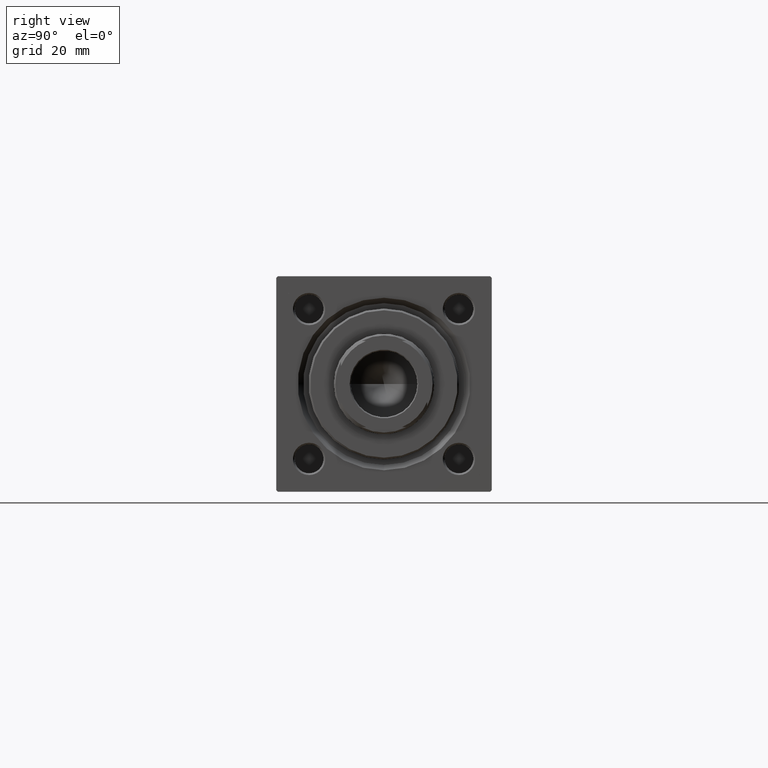
[diagram: clean part render]
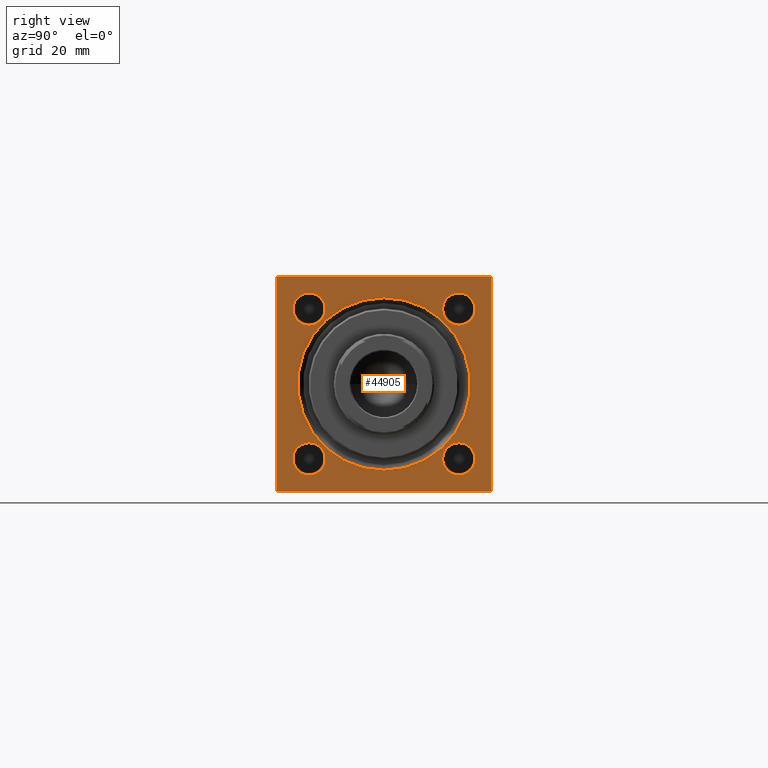
[diagram: same view with one face highlighted and labeled with its STEP entity id]
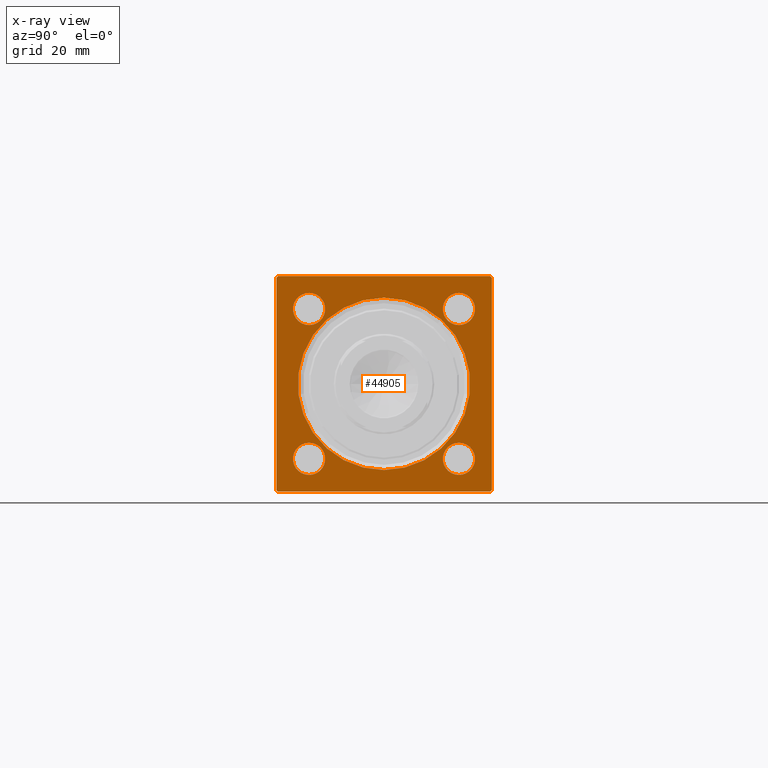
[diagram: x-ray of the same camera — body ghosted, the highlighted face saturated]
A machine part, right view. The second image highlights one B-rep face of the part: STEP entity #44905.
The next image is the same camera in x-ray: the body ghosted, the highlighted face saturated — about 0% of this face is hidden behind the body in this view.
In plain terms, the highlighted planar face has unit normal (-1, 0, 0).
Its self-contained STEP definition (entity closure, byte-faithful):
#37 = EDGE_CURVE ( 'NONE', #8221, #7504, #24513, .T. ) ;
#302 = VECTOR ( 'NONE', #40829, 1000.000000000000114 ) ;
#380 = DIRECTION ( 'NONE',  ( 0.000000000000000000, 0.000000000000000000, 1.000000000000000000 ) ) ;
#814 = AXIS2_PLACEMENT_3D ( 'NONE', #15749, #27426, #50028 ) ;
#934 = EDGE_CURVE ( 'NONE', #32479, #40747, #18917, .T. ) ;
#1148 = EDGE_LOOP ( 'NONE', ( #32883, #36508 ) ) ;
#1224 = CARTESIAN_POINT ( 'NONE',  ( 148.0000000000000000, 2.939152317953652628E-15, 24.00000000000003908 ) ) ;
#1652 = AXIS2_PLACEMENT_3D ( 'NONE', #42588, #37786, #7800 ) ;
#2050 = CARTESIAN_POINT ( 'NONE',  ( 148.0000000000000000, -29.50000000000000000, 29.99999999999999289 ) ) ;
#2240 = VERTEX_POINT ( 'NONE', #35341 ) ;
#2388 = EDGE_LOOP ( 'NONE', ( #31204, #6854 ) ) ;
#3054 = LINE ( 'NONE', #3307, #4102 ) ;
#3108 = FACE_BOUND ( 'NONE', #4187, .T. ) ;
#3307 = CARTESIAN_POINT ( 'NONE',  ( 148.0000000000000000, 30.00000000000000000, 30.00000000000000000 ) ) ;
#3363 = FACE_BOUND ( 'NONE', #1148, .T. ) ;
#3684 = ORIENTED_EDGE ( 'NONE', *, *, #9885, .T. ) ;
#3687 = AXIS2_PLACEMENT_3D ( 'NONE', #11562, #30377, #27057 ) ;
#3927 = DIRECTION ( 'NONE',  ( 0.000000000000000000, 0.000000000000000000, 1.000000000000000000 ) ) ;
#4051 = DIRECTION ( 'NONE',  ( 0.000000000000000000, -0.7071067811865474617, 0.7071067811865474617 ) ) ;
#4102 = VECTOR ( 'NONE', #33808, 1000.000000000000000 ) ;
#4187 = EDGE_LOOP ( 'NONE', ( #25543, #22264 ) ) ;
#4427 = EDGE_CURVE ( 'NONE', #7504, #8221, #22718, .T. ) ;
#4433 = EDGE_CURVE ( 'NONE', #18375, #47554, #15252, .T. ) ;
#4763 = EDGE_CURVE ( 'NONE', #14129, #39417, #21930, .T. ) ;
#4790 = CARTESIAN_POINT ( 'NONE',  ( 148.0000000000000000, -20.85000000000000142, -20.85000000000000142 ) ) ;
#5189 = EDGE_CURVE ( 'NONE', #18375, #42350, #45597, .T. ) ;
#5839 = ORIENTED_EDGE ( 'NONE', *, *, #4433, .T. ) ;
#6206 = VERTEX_POINT ( 'NONE', #46732 ) ;
#6854 = ORIENTED_EDGE ( 'NONE', *, *, #34774, .T. ) ;
#7242 = EDGE_CURVE ( 'NONE', #42363, #2240, #30814, .T. ) ;
#7504 = VERTEX_POINT ( 'NONE', #28902 ) ;
#7800 = DIRECTION ( 'NONE',  ( 0.000000000000000000, 0.000000000000000000, 1.000000000000000000 ) ) ;
#7896 = CARTESIAN_POINT ( 'NONE',  ( 148.0000000000000000, 0.000000000000000000, 0.000000000000000000 ) ) ;
#7993 = CARTESIAN_POINT ( 'NONE',  ( 148.0000000000000000, -20.84999999999999432, 20.85000000000000142 ) ) ;
#8138 = CARTESIAN_POINT ( 'NONE',  ( 148.0000000000000000, -30.00000000000000000, 29.49999999999999289 ) ) ;
#8152 = DIRECTION ( 'NONE',  ( 0.000000000000000000, 0.000000000000000000, 1.000000000000000000 ) ) ;
#8221 = VERTEX_POINT ( 'NONE', #1224 ) ;
#8256 = ORIENTED_EDGE ( 'NONE', *, *, #13908, .T. ) ;
#9173 = ORIENTED_EDGE ( 'NONE', *, *, #40117, .F. ) ;
#9234 = LINE ( 'NONE', #36657, #34751 ) ;
#9261 = ORIENTED_EDGE ( 'NONE', *, *, #4763, .T. ) ;
#9885 = EDGE_CURVE ( 'NONE', #47554, #43915, #3054, .T. ) ;
#10000 = EDGE_LOOP ( 'NONE', ( #16788, #11376 ) ) ;
#11058 = CARTESIAN_POINT ( 'NONE',  ( 148.0000000000000000, 30.00000000000000000, 30.00000000000000000 ) ) ;
#11376 = ORIENTED_EDGE ( 'NONE', *, *, #7242, .T. ) ;
#11437 = CARTESIAN_POINT ( 'NONE',  ( 148.0000000000000000, 29.50000000000000000, 30.00000000000000000 ) ) ;
#11562 = CARTESIAN_POINT ( 'NONE',  ( 148.0000000000000000, 20.84999999999999787, -20.85000000000000142 ) ) ;
#11568 = EDGE_CURVE ( 'NONE', #6206, #41850, #39040, .T. ) ;
#11922 = CARTESIAN_POINT ( 'NONE',  ( 148.0000000000000000, 29.50000000000000000, -29.99999999999999289 ) ) ;
#13143 = CARTESIAN_POINT ( 'NONE',  ( 148.0000000000000000, 30.00000000000000000, -29.49999999999999289 ) ) ;
#13331 = VERTEX_POINT ( 'NONE', #48316 ) ;
#13417 = CIRCLE ( 'NONE', #3687, 4.500000000000017764 ) ;
#13720 = AXIS2_PLACEMENT_3D ( 'NONE', #14063, #26485, #18122 ) ;
#13908 = EDGE_CURVE ( 'NONE', #39417, #14129, #16436, .T. ) ;
#14063 = CARTESIAN_POINT ( 'NONE',  ( 148.0000000000000000, 0.000000000000000000, 0.000000000000000000 ) ) ;
#14086 = ORIENTED_EDGE ( 'NONE', *, *, #21370, .T. ) ;
#14129 = VERTEX_POINT ( 'NONE', #15326 ) ;
#15252 = LINE ( 'NONE', #11437, #29213 ) ;
#15326 = CARTESIAN_POINT ( 'NONE',  ( 148.0000000000000000, 20.84999999999999787, 16.34999999999998366 ) ) ;
#15441 = DIRECTION ( 'NONE',  ( 0.000000000000000000, 0.000000000000000000, -1.000000000000000000 ) ) ;
#15749 = CARTESIAN_POINT ( 'NONE',  ( 148.0000000000000000, 0.000000000000000000, 0.000000000000000000 ) ) ;
#16130 = EDGE_CURVE ( 'NONE', #33680, #42350, #40059, .T. ) ;
#16436 = CIRCLE ( 'NONE', #45608, 4.500000000000017764 ) ;
#16788 = ORIENTED_EDGE ( 'NONE', *, *, #25820, .T. ) ;
#17642 = EDGE_LOOP ( 'NONE', ( #45544, #34380, #9173, #39371, #47857, #5839, #3684, #14086 ) ) ;
#18122 = DIRECTION ( 'NONE',  ( -0.000000000000000000, 0.000000000000000000, 1.000000000000000000 ) ) ;
#18375 = VERTEX_POINT ( 'NONE', #31974 ) ;
#18771 = DIRECTION ( 'NONE',  ( -1.000000000000000000, 0.000000000000000000, -0.000000000000000000 ) ) ;
#18871 = FACE_BOUND ( 'NONE', #2388, .T. ) ;
#18917 = LINE ( 'NONE', #34409, #44773 ) ;
#19480 = DIRECTION ( 'NONE',  ( -1.000000000000000000, 0.000000000000000000, -0.000000000000000000 ) ) ;
#19684 = CARTESIAN_POINT ( 'NONE',  ( 148.0000000000000000, -20.85000000000000142, -20.85000000000000142 ) ) ;
#19995 = AXIS2_PLACEMENT_3D ( 'NONE', #4790, #36536, #28427 ) ;
#20547 = VECTOR ( 'NONE', #36248, 1000.000000000000114 ) ;
#20977 = EDGE_LOOP ( 'NONE', ( #9261, #8256 ) ) ;
#21154 = DIRECTION ( 'NONE',  ( 0.000000000000000000, 0.000000000000000000, 1.000000000000000000 ) ) ;
#21370 = EDGE_CURVE ( 'NONE', #43915, #36370, #29170, .T. ) ;
#21930 = CIRCLE ( 'NONE', #1652, 4.500000000000017764 ) ;
#22264 = ORIENTED_EDGE ( 'NONE', *, *, #11568, .T. ) ;
#22718 = CIRCLE ( 'NONE', #814, 24.00000000000003908 ) ;
#24513 = CIRCLE ( 'NONE', #29378, 24.00000000000003908 ) ;
#25543 = ORIENTED_EDGE ( 'NONE', *, *, #25807, .T. ) ;
#25807 = EDGE_CURVE ( 'NONE', #41850, #6206, #32107, .T. ) ;
#25820 = EDGE_CURVE ( 'NONE', #2240, #42363, #13417, .T. ) ;
#26485 = DIRECTION ( 'NONE',  ( -1.000000000000000000, 0.000000000000000000, -0.000000000000000000 ) ) ;
#26503 = CARTESIAN_POINT ( 'NONE',  ( 148.0000000000000000, 29.50000000000000000, 30.00000000000000000 ) ) ;
#26929 = EDGE_CURVE ( 'NONE', #36370, #32479, #34744, .T. ) ;
#27057 = DIRECTION ( 'NONE',  ( 0.000000000000000000, 0.000000000000000000, 1.000000000000000000 ) ) ;
#27172 = CARTESIAN_POINT ( 'NONE',  ( 148.0000000000000000, -30.00000000000000000, -29.49999999999998579 ) ) ;
#27390 = DIRECTION ( 'NONE',  ( 0.000000000000000000, 0.000000000000000000, 1.000000000000000000 ) ) ;
#27426 = DIRECTION ( 'NONE',  ( -1.000000000000000000, 0.000000000000000000, -0.000000000000000000 ) ) ;
#28427 = DIRECTION ( 'NONE',  ( 0.000000000000000000, 0.000000000000000000, 1.000000000000000000 ) ) ;
#28902 = CARTESIAN_POINT ( 'NONE',  ( 148.0000000000000000, 0.000000000000000000, -24.00000000000003908 ) ) ;
#29170 = LINE ( 'NONE', #29923, #302 ) ;
#29213 = VECTOR ( 'NONE', #4051, 1000.000000000000114 ) ;
#29378 = AXIS2_PLACEMENT_3D ( 'NONE', #7896, #43691, #8152 ) ;
#29923 = CARTESIAN_POINT ( 'NONE',  ( 148.0000000000000000, -30.00000000000000000, 29.49999999999999289 ) ) ;
#30377 = DIRECTION ( 'NONE',  ( -1.000000000000000000, 0.000000000000000000, -0.000000000000000000 ) ) ;
#30605 = DIRECTION ( 'NONE',  ( 0.000000000000000000, 0.7071067811865474617, -0.7071067811865474617 ) ) ;
#30628 = DIRECTION ( 'NONE',  ( -1.000000000000000000, 0.000000000000000000, -0.000000000000000000 ) ) ;
#30672 = DIRECTION ( 'NONE',  ( 0.000000000000000000, 0.000000000000000000, 1.000000000000000000 ) ) ;
#30814 = CIRCLE ( 'NONE', #46196, 4.500000000000017764 ) ;
#30855 = VECTOR ( 'NONE', #38477, 1000.000000000000000 ) ;
#31204 = ORIENTED_EDGE ( 'NONE', *, *, #45652, .T. ) ;
#31603 = AXIS2_PLACEMENT_3D ( 'NONE', #19684, #43030, #380 ) ;
#31974 = CARTESIAN_POINT ( 'NONE',  ( 148.0000000000000000, 30.00000000000000000, 29.50000000000000000 ) ) ;
#32107 = CIRCLE ( 'NONE', #35311, 4.500000000000017764 ) ;
#32479 = VERTEX_POINT ( 'NONE', #27172 ) ;
#32883 = ORIENTED_EDGE ( 'NONE', *, *, #4427, .T. ) ;
#33615 = FACE_BOUND ( 'NONE', #20977, .T. ) ;
#33680 = VERTEX_POINT ( 'NONE', #11922 ) ;
#33808 = DIRECTION ( 'NONE',  ( 0.000000000000000000, -1.000000000000000000, -1.156482317317871478E-16 ) ) ;
#34190 = CARTESIAN_POINT ( 'NONE',  ( 148.0000000000000000, 20.84999999999999787, -16.34999999999998366 ) ) ;
#34365 = PLANE ( 'NONE',  #13720 ) ;
#34380 = ORIENTED_EDGE ( 'NONE', *, *, #934, .T. ) ;
#34409 = CARTESIAN_POINT ( 'NONE',  ( 148.0000000000000000, -29.50000000000000000, -30.00000000000000000 ) ) ;
#34744 = LINE ( 'NONE', #50220, #41029 ) ;
#34751 = VECTOR ( 'NONE', #44022, 1000.000000000000000 ) ;
#34774 = EDGE_CURVE ( 'NONE', #44164, #13331, #40255, .T. ) ;
#35311 = AXIS2_PLACEMENT_3D ( 'NONE', #7993, #30628, #3927 ) ;
#35341 = CARTESIAN_POINT ( 'NONE',  ( 148.0000000000000000, 20.84999999999999787, -25.35000000000001918 ) ) ;
#36026 = CARTESIAN_POINT ( 'NONE',  ( 148.0000000000000000, -20.85000000000000142, -16.34999999999998366 ) ) ;
#36248 = DIRECTION ( 'NONE',  ( -0.000000000000000000, 0.7071067811865474617, 0.7071067811865474617 ) ) ;
#36370 = VERTEX_POINT ( 'NONE', #8138 ) ;
#36508 = ORIENTED_EDGE ( 'NONE', *, *, #37, .T. ) ;
#36536 = DIRECTION ( 'NONE',  ( -1.000000000000000000, 0.000000000000000000, -0.000000000000000000 ) ) ;
#36657 = CARTESIAN_POINT ( 'NONE',  ( 148.0000000000000000, 30.00000000000000000, -29.99999999999999289 ) ) ;
#37176 = CARTESIAN_POINT ( 'NONE',  ( 148.0000000000000000, -20.84999999999999432, 16.34999999999998366 ) ) ;
#37237 = CIRCLE ( 'NONE', #31603, 4.500000000000017764 ) ;
#37737 = CARTESIAN_POINT ( 'NONE',  ( 148.0000000000000000, 30.00000000000000000, -29.49999999999997868 ) ) ;
#37786 = DIRECTION ( 'NONE',  ( -1.000000000000000000, 0.000000000000000000, -0.000000000000000000 ) ) ;
#37907 = FACE_OUTER_BOUND ( 'NONE', #17642, .T. ) ;
#38477 = DIRECTION ( 'NONE',  ( 0.000000000000000000, 0.000000000000000000, -1.000000000000000000 ) ) ;
#38563 = DIRECTION ( 'NONE',  ( -1.000000000000000000, 0.000000000000000000, -0.000000000000000000 ) ) ;
#38761 = CARTESIAN_POINT ( 'NONE',  ( 148.0000000000000000, 20.84999999999999787, 20.85000000000000142 ) ) ;
#39040 = CIRCLE ( 'NONE', #48772, 4.500000000000017764 ) ;
#39371 = ORIENTED_EDGE ( 'NONE', *, *, #16130, .T. ) ;
#39417 = VERTEX_POINT ( 'NONE', #43886 ) ;
#40059 = LINE ( 'NONE', #13143, #20547 ) ;
#40117 = EDGE_CURVE ( 'NONE', #33680, #40747, #9234, .T. ) ;
#40255 = CIRCLE ( 'NONE', #19995, 4.500000000000017764 ) ;
#40428 = CARTESIAN_POINT ( 'NONE',  ( 148.0000000000000000, -20.84999999999999432, 20.85000000000000142 ) ) ;
#40747 = VERTEX_POINT ( 'NONE', #41271 ) ;
#40829 = DIRECTION ( 'NONE',  ( -0.000000000000000000, -0.7071067811865474617, -0.7071067811865474617 ) ) ;
#41029 = VECTOR ( 'NONE', #15441, 1000.000000000000000 ) ;
#41271 = CARTESIAN_POINT ( 'NONE',  ( 148.0000000000000000, -29.50000000000000000, -30.00000000000000000 ) ) ;
#41850 = VERTEX_POINT ( 'NONE', #37176 ) ;
#42350 = VERTEX_POINT ( 'NONE', #37737 ) ;
#42363 = VERTEX_POINT ( 'NONE', #34190 ) ;
#42588 = CARTESIAN_POINT ( 'NONE',  ( 148.0000000000000000, 20.84999999999999787, 20.85000000000000142 ) ) ;
#43030 = DIRECTION ( 'NONE',  ( -1.000000000000000000, 0.000000000000000000, -0.000000000000000000 ) ) ;
#43691 = DIRECTION ( 'NONE',  ( -1.000000000000000000, 0.000000000000000000, -0.000000000000000000 ) ) ;
#43886 = CARTESIAN_POINT ( 'NONE',  ( 148.0000000000000000, 20.84999999999999787, 25.35000000000001918 ) ) ;
#43915 = VERTEX_POINT ( 'NONE', #2050 ) ;
#44022 = DIRECTION ( 'NONE',  ( 0.000000000000000000, -1.000000000000000000, -1.156482317317871478E-16 ) ) ;
#44164 = VERTEX_POINT ( 'NONE', #36026 ) ;
#44773 = VECTOR ( 'NONE', #30605, 1000.000000000000114 ) ;
#44905 = ADVANCED_FACE ( 'NONE', ( #33615, #3108, #18871, #45778, #3363, #37907 ), #34365, .F. ) ;
#45544 = ORIENTED_EDGE ( 'NONE', *, *, #26929, .T. ) ;
#45597 = LINE ( 'NONE', #11058, #30855 ) ;
#45608 = AXIS2_PLACEMENT_3D ( 'NONE', #38761, #19480, #30672 ) ;
#45652 = EDGE_CURVE ( 'NONE', #13331, #44164, #37237, .T. ) ;
#45778 = FACE_BOUND ( 'NONE', #10000, .T. ) ;
#46196 = AXIS2_PLACEMENT_3D ( 'NONE', #46435, #38563, #27390 ) ;
#46435 = CARTESIAN_POINT ( 'NONE',  ( 148.0000000000000000, 20.84999999999999787, -20.85000000000000142 ) ) ;
#46732 = CARTESIAN_POINT ( 'NONE',  ( 148.0000000000000000, -20.84999999999999432, 25.35000000000001918 ) ) ;
#47554 = VERTEX_POINT ( 'NONE', #26503 ) ;
#47857 = ORIENTED_EDGE ( 'NONE', *, *, #5189, .F. ) ;
#48316 = CARTESIAN_POINT ( 'NONE',  ( 148.0000000000000000, -20.85000000000000142, -25.35000000000001918 ) ) ;
#48772 = AXIS2_PLACEMENT_3D ( 'NONE', #40428, #18771, #21154 ) ;
#50028 = DIRECTION ( 'NONE',  ( 0.000000000000000000, 0.000000000000000000, 1.000000000000000000 ) ) ;
#50220 = CARTESIAN_POINT ( 'NONE',  ( 148.0000000000000000, -30.00000000000000000, 29.99999999999999289 ) ) ;